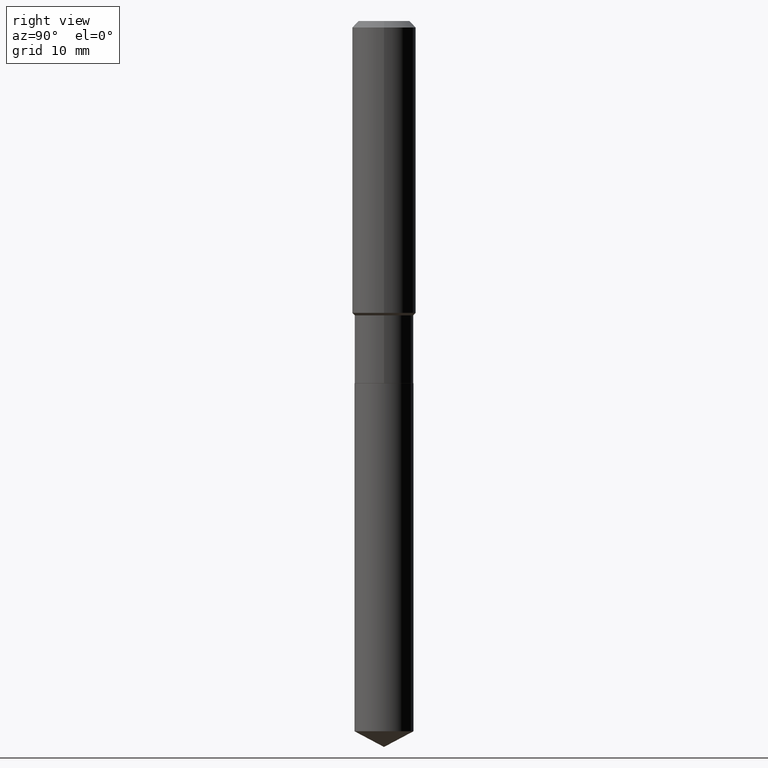
[diagram: clean part render]
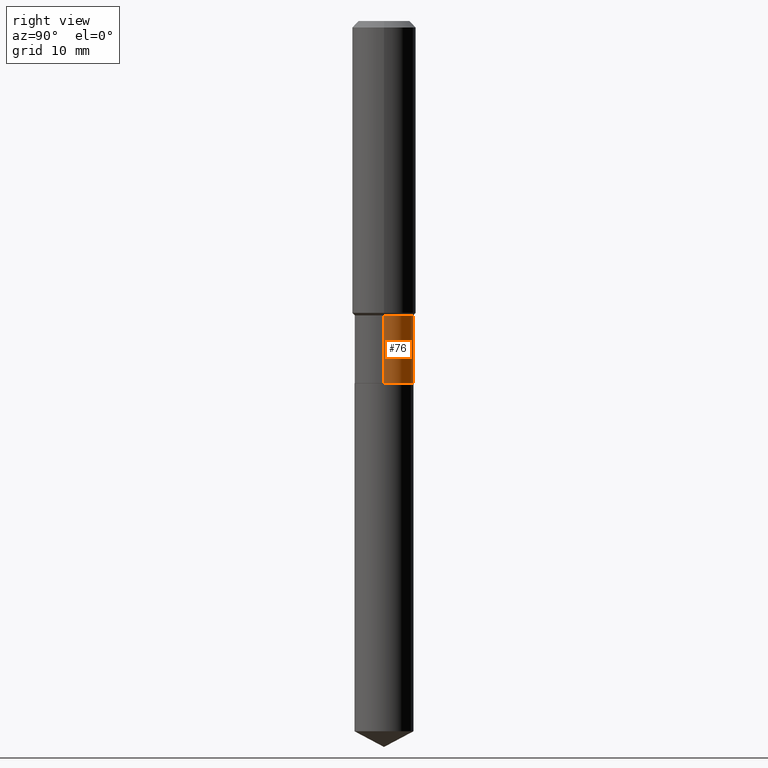
[diagram: same view with one face highlighted and labeled with its STEP entity id]
A machine part, right view. The second image highlights one B-rep face of the part: STEP entity #76.
In plain terms, the highlighted cylindrical surface (edge-blend (fillet) strip) has radius 3.6995 mm, axis along (-0, 0, 1).
Its self-contained STEP definition (entity closure, byte-faithful):
#5 = DIRECTION ( 'NONE',  ( -2.445468806185136597E-29, 3.491481338843145583E-15, 1.000000000000000000 ) ) ;
#24 = AXIS2_PLACEMENT_3D ( 'NONE', #60, #477, #322 ) ;
#32 = EDGE_CURVE ( 'NONE', #117, #111, #153, .T. ) ;
#41 = VECTOR ( 'NONE', #90, 39.37007874015748143 ) ;
#60 = CARTESIAN_POINT ( 'NONE',  ( 4.369808209772221874E-29, -6.238928004378817945E-15, -1.786900000000000599 ) ) ;
#76 = ADVANCED_FACE ( 'NONE', ( #362 ), #143, .T. ) ;
#85 = EDGE_CURVE ( 'NONE', #381, #120, #126, .T. ) ;
#90 = DIRECTION ( 'NONE',  ( -2.445468806185136877E-29, 3.491481338843145188E-15, 1.000000000000000000 ) ) ;
#95 = EDGE_CURVE ( 'NONE', #381, #117, #170, .T. ) ;
#111 = VERTEX_POINT ( 'NONE', #192 ) ;
#114 = ORIENTED_EDGE ( 'NONE', *, *, #95, .T. ) ;
#117 = VERTEX_POINT ( 'NONE', #218 ) ;
#120 = VERTEX_POINT ( 'NONE', #292 ) ;
#125 = CARTESIAN_POINT ( 'NONE',  ( 0.1456500000000000017, -1.017068514005004661E-15, 7.102151473946780073E-30 ) ) ;
#126 = LINE ( 'NONE', #125, #41 ) ;
#143 = CYLINDRICAL_SURFACE ( 'NONE', #312, 0.1456500000000000017 ) ;
#144 = ORIENTED_EDGE ( 'NONE', *, *, #85, .F. ) ;
#153 = LINE ( 'NONE', #265, #483 ) ;
#170 = CIRCLE ( 'NONE', #24, 0.1456500000000000017 ) ;
#177 = ORIENTED_EDGE ( 'NONE', *, *, #32, .T. ) ;
#180 = DIRECTION ( 'NONE',  ( -2.445468806185136877E-29, 3.491481338843145188E-15, 1.000000000000000000 ) ) ;
#192 = CARTESIAN_POINT ( 'NONE',  ( -0.1456499999999999739, -4.620072255822716192E-15, -1.452400000000000135 ) ) ;
#194 = CIRCLE ( 'NONE', #198, 0.1456499999999999739 ) ;
#198 = AXIS2_PLACEMENT_3D ( 'NONE', #203, #5, #383 ) ;
#203 = CARTESIAN_POINT ( 'NONE',  ( 3.551798894103292391E-29, -5.071027496535785515E-15, -1.452400000000000135 ) ) ;
#218 = CARTESIAN_POINT ( 'NONE',  ( -0.1456500000000000294, -4.620072255822716192E-15, -1.786900000000000599 ) ) ;
#265 = CARTESIAN_POINT ( 'NONE',  ( -0.1456500000000000017, 1.034905494634585933E-15, -7.164428958956269648E-30 ) ) ;
#286 = CARTESIAN_POINT ( 'NONE',  ( 0.1456500000000000017, -7.255996518383823001E-15, -1.786900000000000599 ) ) ;
#292 = CARTESIAN_POINT ( 'NONE',  ( 0.1456499999999999739, -6.088096010540789782E-15, -1.452400000000000135 ) ) ;
#296 = EDGE_LOOP ( 'NONE', ( #114, #177, #309, #144 ) ) ;
#298 = CARTESIAN_POINT ( 'NONE',  ( 0.000000000000000000, 0.000000000000000000, 0.000000000000000000 ) ) ;
#309 = ORIENTED_EDGE ( 'NONE', *, *, #338, .F. ) ;
#312 = AXIS2_PLACEMENT_3D ( 'NONE', #298, #331, #473 ) ;
#322 = DIRECTION ( 'NONE',  ( 1.000000000000000000, -6.982962677686269866E-15, 0.000000000000000000 ) ) ;
#331 = DIRECTION ( 'NONE',  ( -2.445468806185136597E-29, 3.491481338843145583E-15, 1.000000000000000000 ) ) ;
#338 = EDGE_CURVE ( 'NONE', #120, #111, #194, .T. ) ;
#362 = FACE_OUTER_BOUND ( 'NONE', #296, .T. ) ;
#381 = VERTEX_POINT ( 'NONE', #286 ) ;
#383 = DIRECTION ( 'NONE',  ( 1.000000000000000000, -6.982962677686264344E-15, 0.000000000000000000 ) ) ;
#473 = DIRECTION ( 'NONE',  ( 1.000000000000000000, -6.982962677686265922E-15, 4.876176775795935232E-29 ) ) ;
#477 = DIRECTION ( 'NONE',  ( -2.445468806185136597E-29, 3.491481338843145583E-15, 1.000000000000000000 ) ) ;
#483 = VECTOR ( 'NONE', #180, 39.37007874015748143 ) ;